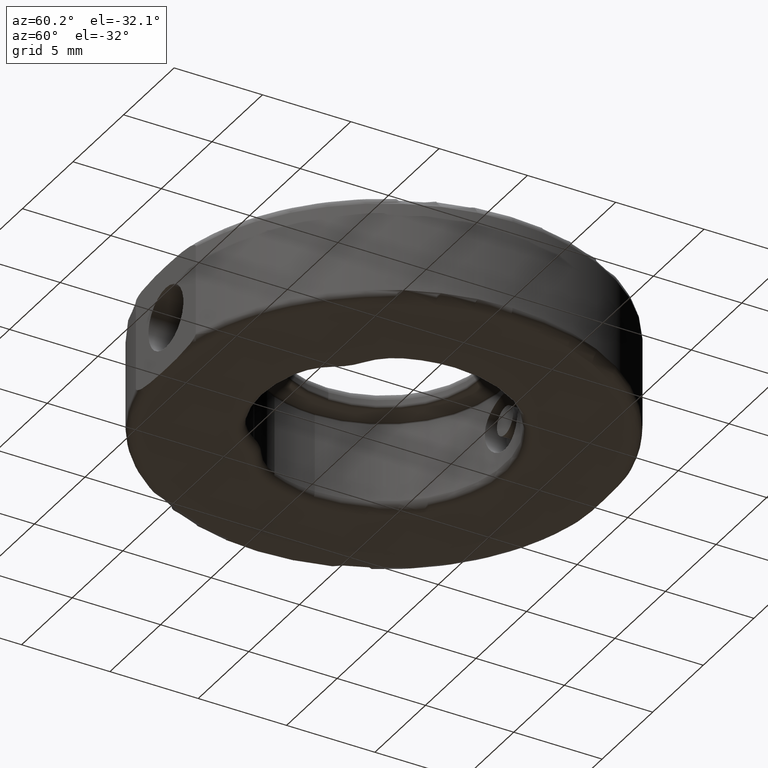
[diagram: clean part render]
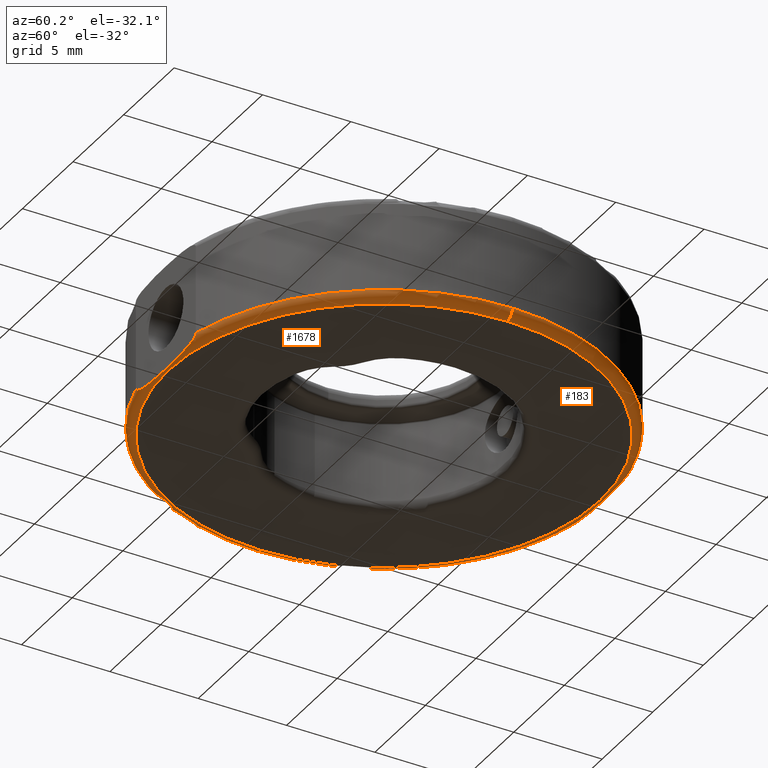
[diagram: same view with one multi-face feature highlighted, each face labeled with its STEP entity id]
A machine part, auxiliary view. The highlighted faces form ONE feature: a constant-radius fillet chain: 2 tangent blend faces with common blend radius 0.5 mm. The faces share edges in the B-rep.
Their STEP definitions:
[1] entity #1678 (Torus):
#1 = DIRECTION ( 'NONE',  ( -0.0000000000000000000, 0.0000000000000000000, 1.000000000000000000 ) ) ;
#8 = DIRECTION ( 'NONE',  ( -0.0000000000000000000, 0.0000000000000000000, 1.000000000000000000 ) ) ;
#35 = CIRCLE ( 'NONE', #1834, 12.69999999999999900 ) ;
#117 = CARTESIAN_POINT ( 'NONE',  ( -0.1307823819386641500, 1.275128223901953000, -3.000000000000002200 ) ) ;
#130 = EDGE_LOOP ( 'NONE', ( #1008, #1340, #157, #1920, #536, #1504 ) ) ;
#138 = CARTESIAN_POINT ( 'NONE',  ( 2.431956579931703600, -11.07487177609805000, -2.787365535200865700 ) ) ;
#146 = CARTESIAN_POINT ( 'NONE',  ( 1.669553385708243900, -11.07487177609805200, -2.917247867333310700 ) ) ;
#157 = ORIENTED_EDGE ( 'NONE', *, *, #243, .T. ) ;
#158 = DIRECTION ( 'NONE',  ( 0.0000000000000000000, 0.0000000000000000000, -1.000000000000000000 ) ) ;
#240 = CIRCLE ( 'NONE', #2279, 0.5000000000000000000 ) ;
#243 = EDGE_CURVE ( 'NONE', #1307, #1364, #240, .T. ) ;
#270 = DIRECTION ( 'NONE',  ( 0.0000000000000000000, -0.0000000000000000000, -1.000000000000000000 ) ) ;
#299 = CARTESIAN_POINT ( 'NONE',  ( -0.6441267620280120000, -11.07487177609805200, -2.976981828199785100 ) ) ;
#307 = CARTESIAN_POINT ( 'NONE',  ( 2.775593125687095600, -11.07487177609805000, -2.614659632604450700 ) ) ;
#313 = CARTESIAN_POINT ( 'NONE',  ( 2.830214071959914300, -11.07487177609804800, -2.500000000000001800 ) ) ;
#422 = DIRECTION ( 'NONE',  ( -1.000000000000000000, 0.0000000000000000000, 0.0000000000000000000 ) ) ;
#483 = CIRCLE ( 'NONE', #1985, 12.69999999999999900 ) ;
#487 = CIRCLE ( 'NONE', #955, 12.19999999999999900 ) ;
#490 = CARTESIAN_POINT ( 'NONE',  ( 2.670115920195685900, -11.07487177609805200, -2.691488670934127500 ) ) ;
#510 = CARTESIAN_POINT ( 'NONE',  ( -1.159692197158569400, -11.07487177609805500, -2.971245217262659100 ) ) ;
#512 = CARTESIAN_POINT ( 'NONE',  ( 12.06921761806133600, 1.275128223901953000, -2.500000000000001800 ) ) ;
#533 = VERTEX_POINT ( 'NONE', #313 ) ;
#536 = ORIENTED_EDGE ( 'NONE', *, *, #1562, .F. ) ;
#666 = CARTESIAN_POINT ( 'NONE',  ( -0.1307823819386641500, 1.275128223901953000, -2.500000000000001800 ) ) ;
#692 = CARTESIAN_POINT ( 'NONE',  ( 2.611608024788584000, -11.07487177609805000, -2.718126256177168600 ) ) ;
#701 = CARTESIAN_POINT ( 'NONE',  ( -2.930357791034510700, -11.07487177609805000, -2.692204496597860400 ) ) ;
#723 = CARTESIAN_POINT ( 'NONE',  ( -0.1307823819386641500, 1.275128223901953000, -2.500000000000001800 ) ) ;
#737 = EDGE_CURVE ( 'NONE', #1671, #1197, #1048, .T. ) ;
#785 = B_SPLINE_CURVE_WITH_KNOTS ( 'NONE', 3,
 ( #1623, #1814, #1790, #2343, #889, #701, #882, #2327, #1607, #1236, #1246, #510, #299, #1616, #2187, #146, #1423, #1805, #138, #692, #490, #1434, #307, #2358, #1068, #1997 ),
 .UNSPECIFIED., .F., .F.,
 ( 4, 2, 2, 2, 2, 2, 2, 2, 2, 2, 2, 2, 4 ),
 ( 0.0000000000000000000, 9.765302459198907100E-005, 0.0001953060491839781400, 0.0003906120983679566100, 0.0007812241967359123500, 0.001562448393471824700, 0.003124896786943650300, 0.004687345180415476700, 0.005468569377151389500, 0.005859181475519345900, 0.006054487524703323200, 0.006152140549295313600, 0.006249793573887303100 ),
 .UNSPECIFIED. ) ;
#820 = CARTESIAN_POINT ( 'NONE',  ( -3.091778835837240000, -11.07487177609804800, -2.500000000000001800 ) ) ;
#842 = DIRECTION ( 'NONE',  ( 1.000000000000000000, 0.0000000000000000000, 0.0000000000000000000 ) ) ;
#882 = CARTESIAN_POINT ( 'NONE',  ( -2.871027734352352000, -11.07487177609805000, -2.719092662411371400 ) ) ;
#889 = CARTESIAN_POINT ( 'NONE',  ( -3.011043471902694200, -11.07487177609804800, -2.636536391317760900 ) ) ;
#907 = DIRECTION ( 'NONE',  ( 1.000000000000000000, 0.0000000000000000000, 0.0000000000000000000 ) ) ;
#955 = AXIS2_PLACEMENT_3D ( 'NONE', #117, #270, #842 ) ;
#957 = CARTESIAN_POINT ( 'NONE',  ( -12.33078238193866300, 1.275128223901954300, -2.500000000000001800 ) ) ;
#1008 = ORIENTED_EDGE ( 'NONE', *, *, #737, .F. ) ;
#1048 = CIRCLE ( 'NONE', #1932, 0.5000000000000004400 ) ;
#1068 = CARTESIAN_POINT ( 'NONE',  ( 2.830214071960095900, -11.07487177609805200, -2.532374462396621800 ) ) ;
#1072 = FACE_OUTER_BOUND ( 'NONE', #130, .T. ) ;
#1101 = AXIS2_PLACEMENT_3D ( 'NONE', #2367, #1, #1468 ) ;
#1102 = CARTESIAN_POINT ( 'NONE',  ( -12.33078238193866300, 1.275128223901954300, -3.000000000000002200 ) ) ;
#1180 = TOROIDAL_SURFACE ( 'NONE', #1101, 12.19999999999999900, 0.5000000000000000000 ) ;
#1197 = VERTEX_POINT ( 'NONE', #1480 ) ;
#1236 = CARTESIAN_POINT ( 'NONE',  ( -2.184275327882310600, -11.07487177609804600, -2.892440450586492700 ) ) ;
#1246 = CARTESIAN_POINT ( 'NONE',  ( -1.928769767755733800, -11.07487177609805200, -2.917453096225491200 ) ) ;
#1307 = VERTEX_POINT ( 'NONE', #1353 ) ;
#1340 = ORIENTED_EDGE ( 'NONE', *, *, #1964, .F. ) ;
#1353 = CARTESIAN_POINT ( 'NONE',  ( 12.06921761806133600, 1.275128223901953000, -3.000000000000002200 ) ) ;
#1364 = VERTEX_POINT ( 'NONE', #1907 ) ;
#1423 = CARTESIAN_POINT ( 'NONE',  ( 1.926089808700930600, -11.07487177609804800, -2.892070181259379400 ) ) ;
#1434 = CARTESIAN_POINT ( 'NONE',  ( 2.750344353454675000, -11.07487177609805000, -2.635837874443093900 ) ) ;
#1468 = DIRECTION ( 'NONE',  ( 1.000000000000000000, 0.0000000000000000000, 0.0000000000000000000 ) ) ;
#1480 = CARTESIAN_POINT ( 'NONE',  ( -12.83078238193866300, 1.275128223901953000, -2.500000000000001800 ) ) ;
#1504 = ORIENTED_EDGE ( 'NONE', *, *, #1629, .F. ) ;
#1562 = EDGE_CURVE ( 'NONE', #1865, #533, #785, .T. ) ;
#1607 = CARTESIAN_POINT ( 'NONE',  ( -2.563181860778304300, -11.07487177609804800, -2.818817749183580600 ) ) ;
#1616 = CARTESIAN_POINT ( 'NONE',  ( 0.3844310859276911000, -11.07487177609805300, -2.976957350977252700 ) ) ;
#1623 = CARTESIAN_POINT ( 'NONE',  ( -3.091778835837240000, -11.07487177609804800, -2.500000000000001800 ) ) ;
#1624 = DIRECTION ( 'NONE',  ( 0.0000000000000000000, -1.000000000000000000, 0.0000000000000000000 ) ) ;
#1629 = EDGE_CURVE ( 'NONE', #1197, #1865, #35, .T. ) ;
#1671 = VERTEX_POINT ( 'NONE', #1102 ) ;
#1678 = ADVANCED_FACE ( 'NONE', ( #1072 ), #1180, .T. ) ;
#1719 = DIRECTION ( 'NONE',  ( 1.224646799147353200E-016, 1.000000000000000000, 0.0000000000000000000 ) ) ;
#1788 = DIRECTION ( 'NONE',  ( -1.000000000000000000, 0.0000000000000000000, 0.0000000000000000000 ) ) ;
#1790 = CARTESIAN_POINT ( 'NONE',  ( -3.077086133282192400, -11.07487177609805000, -2.564068744011605900 ) ) ;
#1805 = CARTESIAN_POINT ( 'NONE',  ( 2.305809232951712100, -11.07487177609805200, -2.817856692498361700 ) ) ;
#1814 = CARTESIAN_POINT ( 'NONE',  ( -3.091778835837240000, -11.07487177609804800, -2.533226409577013200 ) ) ;
#1834 = AXIS2_PLACEMENT_3D ( 'NONE', #723, #8, #907 ) ;
#1865 = VERTEX_POINT ( 'NONE', #820 ) ;
#1907 = CARTESIAN_POINT ( 'NONE',  ( 12.56921761806133600, 1.275128223901953000, -2.500000000000001800 ) ) ;
#1920 = ORIENTED_EDGE ( 'NONE', *, *, #2356, .F. ) ;
#1932 = AXIS2_PLACEMENT_3D ( 'NONE', #957, #1719, #422 ) ;
#1964 = EDGE_CURVE ( 'NONE', #1307, #1671, #487, .T. ) ;
#1985 = AXIS2_PLACEMENT_3D ( 'NONE', #666, #2139, #1788 ) ;
#1997 = CARTESIAN_POINT ( 'NONE',  ( 2.830214071959914300, -11.07487177609804800, -2.500000000000001800 ) ) ;
#2139 = DIRECTION ( 'NONE',  ( 0.0000000000000000000, 0.0000000000000000000, 1.000000000000000000 ) ) ;
#2187 = CARTESIAN_POINT ( 'NONE',  ( 0.8986555207251169000, -11.07487177609805200, -2.971289814684425300 ) ) ;
#2279 = AXIS2_PLACEMENT_3D ( 'NONE', #512, #1624, #158 ) ;
#2327 = CARTESIAN_POINT ( 'NONE',  ( -2.690206657662578000, -11.07487177609804600, -2.788354658295198800 ) ) ;
#2343 = CARTESIAN_POINT ( 'NONE',  ( -3.036354261264731400, -11.07487177609804800, -2.615509013855480600 ) ) ;
#2356 = EDGE_CURVE ( 'NONE', #533, #1364, #483, .T. ) ;
#2358 = CARTESIAN_POINT ( 'NONE',  ( 2.815601191884419500, -11.07487177609805000, -2.563798731450130000 ) ) ;
#2367 = CARTESIAN_POINT ( 'NONE',  ( -0.1307823819386641500, 1.275128223901953000, -2.500000000000001800 ) ) ;
[2] entity #183 (Torus):
#29 = DIRECTION ( 'NONE',  ( -0.0000000000000000000, 0.0000000000000000000, 1.000000000000000000 ) ) ;
#66 = VERTEX_POINT ( 'NONE', #1600 ) ;
#102 = DIRECTION ( 'NONE',  ( 1.000000000000000000, 0.0000000000000000000, 0.0000000000000000000 ) ) ;
#104 = AXIS2_PLACEMENT_3D ( 'NONE', #1390, #462, #102 ) ;
#133 = CARTESIAN_POINT ( 'NONE',  ( -0.6459958498050177900, 13.62512822390195300, -2.976957350977251800 ) ) ;
#152 = CARTESIAN_POINT ( 'NONE',  ( -2.693521343809027500, 13.62512822390195500, -2.787365535200864800 ) ) ;
#158 = DIRECTION ( 'NONE',  ( 0.0000000000000000000, 0.0000000000000000000, -1.000000000000000000 ) ) ;
#162 = CARTESIAN_POINT ( 'NONE',  ( 2.749478708025364400, 13.62512822390195500, -2.636536391317756900 ) ) ;
#183 = ADVANCED_FACE ( 'NONE', ( #1187 ), #2117, .T. ) ;
#240 = CIRCLE ( 'NONE', #2279, 0.5000000000000000000 ) ;
#243 = EDGE_CURVE ( 'NONE', #1307, #1364, #240, .T. ) ;
#287 = ORIENTED_EDGE ( 'NONE', *, *, #2132, .F. ) ;
#312 = CARTESIAN_POINT ( 'NONE',  ( -3.037157889564420500, 13.62512822390195700, -2.614659632604455600 ) ) ;
#323 = CARTESIAN_POINT ( 'NONE',  ( 2.815521369404864900, 13.62512822390195500, -2.564068744011605900 ) ) ;
#337 = CARTESIAN_POINT ( 'NONE',  ( 2.428641893785251400, 13.62512822390195300, -2.788354658295199200 ) ) ;
#422 = DIRECTION ( 'NONE',  ( -1.000000000000000000, 0.0000000000000000000, 0.0000000000000000000 ) ) ;
#462 = DIRECTION ( 'NONE',  ( 0.0000000000000000000, -0.0000000000000000000, -1.000000000000000000 ) ) ;
#505 = CARTESIAN_POINT ( 'NONE',  ( -2.567373996829036100, 13.62512822390195300, -2.817856692498362100 ) ) ;
#512 = CARTESIAN_POINT ( 'NONE',  ( 12.06921761806133600, 1.275128223901953000, -2.500000000000001800 ) ) ;
#514 = CARTESIAN_POINT ( 'NONE',  ( 2.301617096900977300, 13.62512822390195300, -2.818817749183581100 ) ) ;
#520 = CARTESIAN_POINT ( 'NONE',  ( 2.609462970475023600, 13.62512822390195500, -2.719092662411370900 ) ) ;
#529 = CARTESIAN_POINT ( 'NONE',  ( -3.077165955761747900, 13.62512822390195500, -2.563798731450132700 ) ) ;
#606 = EDGE_CURVE ( 'NONE', #1285, #1197, #668, .T. ) ;
#668 = CIRCLE ( 'NONE', #2107, 12.69999999999999900 ) ;
#677 = EDGE_LOOP ( 'NONE', ( #877, #2018, #2044, #287, #2149, #2069 ) ) ;
#694 = CARTESIAN_POINT ( 'NONE',  ( -0.1307823819386641500, 1.275128223901953000, -2.500000000000001800 ) ) ;
#698 = CARTESIAN_POINT ( 'NONE',  ( 2.830214071959914700, 13.62512822390195700, -2.533226409577014500 ) ) ;
#711 = DIRECTION ( 'NONE',  ( 1.000000000000000000, 0.0000000000000000000, 0.0000000000000000000 ) ) ;
#714 = CARTESIAN_POINT ( 'NONE',  ( 2.668793027157179600, 13.62512822390195500, -2.692204496597855500 ) ) ;
#737 = EDGE_CURVE ( 'NONE', #1671, #1197, #1048, .T. ) ;
#798 = DIRECTION ( 'NONE',  ( -1.000000000000000000, 8.878505979408856000E-016, 0.0000000000000000000 ) ) ;
#869 = CARTESIAN_POINT ( 'NONE',  ( 2.774789497387406100, 13.62512822390195700, -2.615509013855482000 ) ) ;
#877 = ORIENTED_EDGE ( 'NONE', *, *, #1437, .F. ) ;
#886 = CARTESIAN_POINT ( 'NONE',  ( 0.3825619981506865300, 13.62512822390195500, -2.976981828199783700 ) ) ;
#957 = CARTESIAN_POINT ( 'NONE',  ( -12.33078238193866300, 1.275128223901954300, -2.500000000000001800 ) ) ;
#1048 = CIRCLE ( 'NONE', #1932, 0.5000000000000004400 ) ;
#1059 = CARTESIAN_POINT ( 'NONE',  ( 1.667205003878407200, 13.62512822390195700, -2.917453096225491200 ) ) ;
#1090 = DIRECTION ( 'NONE',  ( -0.0000000000000000000, 0.0000000000000000000, 1.000000000000000000 ) ) ;
#1102 = CARTESIAN_POINT ( 'NONE',  ( -12.33078238193866300, 1.275128223901954300, -3.000000000000002200 ) ) ;
#1187 = FACE_OUTER_BOUND ( 'NONE', #677, .T. ) ;
#1197 = VERTEX_POINT ( 'NONE', #1480 ) ;
#1230 = CARTESIAN_POINT ( 'NONE',  ( -2.873172788665907500, 13.62512822390195800, -2.718126256177170400 ) ) ;
#1249 = CARTESIAN_POINT ( 'NONE',  ( -1.931118149585568300, 13.62512822390195500, -2.917247867333310700 ) ) ;
#1266 = AXIS2_PLACEMENT_3D ( 'NONE', #1380, #1761, #798 ) ;
#1285 = VERTEX_POINT ( 'NONE', #2217 ) ;
#1296 = DIRECTION ( 'NONE',  ( 1.000000000000000000, 0.0000000000000000000, 0.0000000000000000000 ) ) ;
#1307 = VERTEX_POINT ( 'NONE', #1353 ) ;
#1353 = CARTESIAN_POINT ( 'NONE',  ( 12.06921761806133600, 1.275128223901953000, -3.000000000000002200 ) ) ;
#1364 = VERTEX_POINT ( 'NONE', #1907 ) ;
#1380 = CARTESIAN_POINT ( 'NONE',  ( -0.1307823819386641500, 1.275128223901953000, -2.500000000000001800 ) ) ;
#1390 = CARTESIAN_POINT ( 'NONE',  ( -0.1307823819386641500, 1.275128223901953000, -3.000000000000002200 ) ) ;
#1392 = B_SPLINE_CURVE_WITH_KNOTS ( 'NONE', 3,
 ( #2363, #698, #323, #869, #162, #714, #520, #337, #514, #1812, #1059, #1800, #886, #133, #1455, #1249, #1429, #505, #152, #1230, #1446, #1642, #312, #529, #2195, #2331 ),
 .UNSPECIFIED., .F., .F.,
 ( 4, 2, 2, 2, 2, 2, 2, 2, 2, 2, 2, 2, 4 ),
 ( 0.0000000000000000000, 9.765302459198912500E-005, 0.0001953060491839782500, 0.0003906120983679565000, 0.0007812241967359141900, 0.001562448393471829500, 0.003124896786943660200, 0.004687345180415490600, 0.005468569377151406000, 0.005859181475519365000, 0.006054487524703343200, 0.006152140549295332700, 0.006249793573887323100 ),
 .UNSPECIFIED. ) ;
#1429 = CARTESIAN_POINT ( 'NONE',  ( -2.187654572578254400, 13.62512822390195500, -2.892070181259379900 ) ) ;
#1437 = EDGE_CURVE ( 'NONE', #1671, #1307, #1540, .T. ) ;
#1446 = CARTESIAN_POINT ( 'NONE',  ( -2.931680684073006700, 13.62512822390195700, -2.691488670934137700 ) ) ;
#1455 = CARTESIAN_POINT ( 'NONE',  ( -1.160220284602442100, 13.62512822390195700, -2.971289814684425300 ) ) ;
#1480 = CARTESIAN_POINT ( 'NONE',  ( -12.83078238193866300, 1.275128223901953000, -2.500000000000001800 ) ) ;
#1540 = CIRCLE ( 'NONE', #104, 12.19999999999999900 ) ;
#1592 = CIRCLE ( 'NONE', #1266, 12.69999999999999900 ) ;
#1600 = CARTESIAN_POINT ( 'NONE',  ( 2.830214071959913800, 13.62512822390195500, -2.500000000000001800 ) ) ;
#1624 = DIRECTION ( 'NONE',  ( 0.0000000000000000000, -1.000000000000000000, 0.0000000000000000000 ) ) ;
#1642 = CARTESIAN_POINT ( 'NONE',  ( -3.011909117332002900, 13.62512822390195500, -2.635837874443101500 ) ) ;
#1671 = VERTEX_POINT ( 'NONE', #1102 ) ;
#1676 = AXIS2_PLACEMENT_3D ( 'NONE', #694, #1090, #711 ) ;
#1684 = CARTESIAN_POINT ( 'NONE',  ( -0.1307823819386641500, 1.275128223901953000, -2.500000000000001800 ) ) ;
#1719 = DIRECTION ( 'NONE',  ( 1.224646799147353200E-016, 1.000000000000000000, 0.0000000000000000000 ) ) ;
#1761 = DIRECTION ( 'NONE',  ( 0.0000000000000000000, 0.0000000000000000000, 1.000000000000000000 ) ) ;
#1800 = CARTESIAN_POINT ( 'NONE',  ( 0.8981274332812420000, 13.62512822390195500, -2.971245217262657800 ) ) ;
#1812 = CARTESIAN_POINT ( 'NONE',  ( 1.922710564004985500, 13.62512822390195800, -2.892440450586492700 ) ) ;
#1907 = CARTESIAN_POINT ( 'NONE',  ( 12.56921761806133600, 1.275128223901953000, -2.500000000000001800 ) ) ;
#1932 = AXIS2_PLACEMENT_3D ( 'NONE', #957, #1719, #422 ) ;
#2018 = ORIENTED_EDGE ( 'NONE', *, *, #737, .T. ) ;
#2044 = ORIENTED_EDGE ( 'NONE', *, *, #606, .F. ) ;
#2069 = ORIENTED_EDGE ( 'NONE', *, *, #243, .F. ) ;
#2107 = AXIS2_PLACEMENT_3D ( 'NONE', #1684, #29, #1296 ) ;
#2117 = TOROIDAL_SURFACE ( 'NONE', #1676, 12.19999999999999900, 0.5000000000000000000 ) ;
#2132 = EDGE_CURVE ( 'NONE', #66, #1285, #1392, .T. ) ;
#2149 = ORIENTED_EDGE ( 'NONE', *, *, #2338, .F. ) ;
#2195 = CARTESIAN_POINT ( 'NONE',  ( -3.091778835837424300, 13.62512822390195700, -2.532374462396624400 ) ) ;
#2217 = CARTESIAN_POINT ( 'NONE',  ( -3.091778835837243100, 13.62512822390195500, -2.500000000000002700 ) ) ;
#2279 = AXIS2_PLACEMENT_3D ( 'NONE', #512, #1624, #158 ) ;
#2331 = CARTESIAN_POINT ( 'NONE',  ( -3.091778835837243100, 13.62512822390195500, -2.500000000000002700 ) ) ;
#2338 = EDGE_CURVE ( 'NONE', #1364, #66, #1592, .T. ) ;
#2363 = CARTESIAN_POINT ( 'NONE',  ( 2.830214071959913800, 13.62512822390195500, -2.500000000000001800 ) ) ;